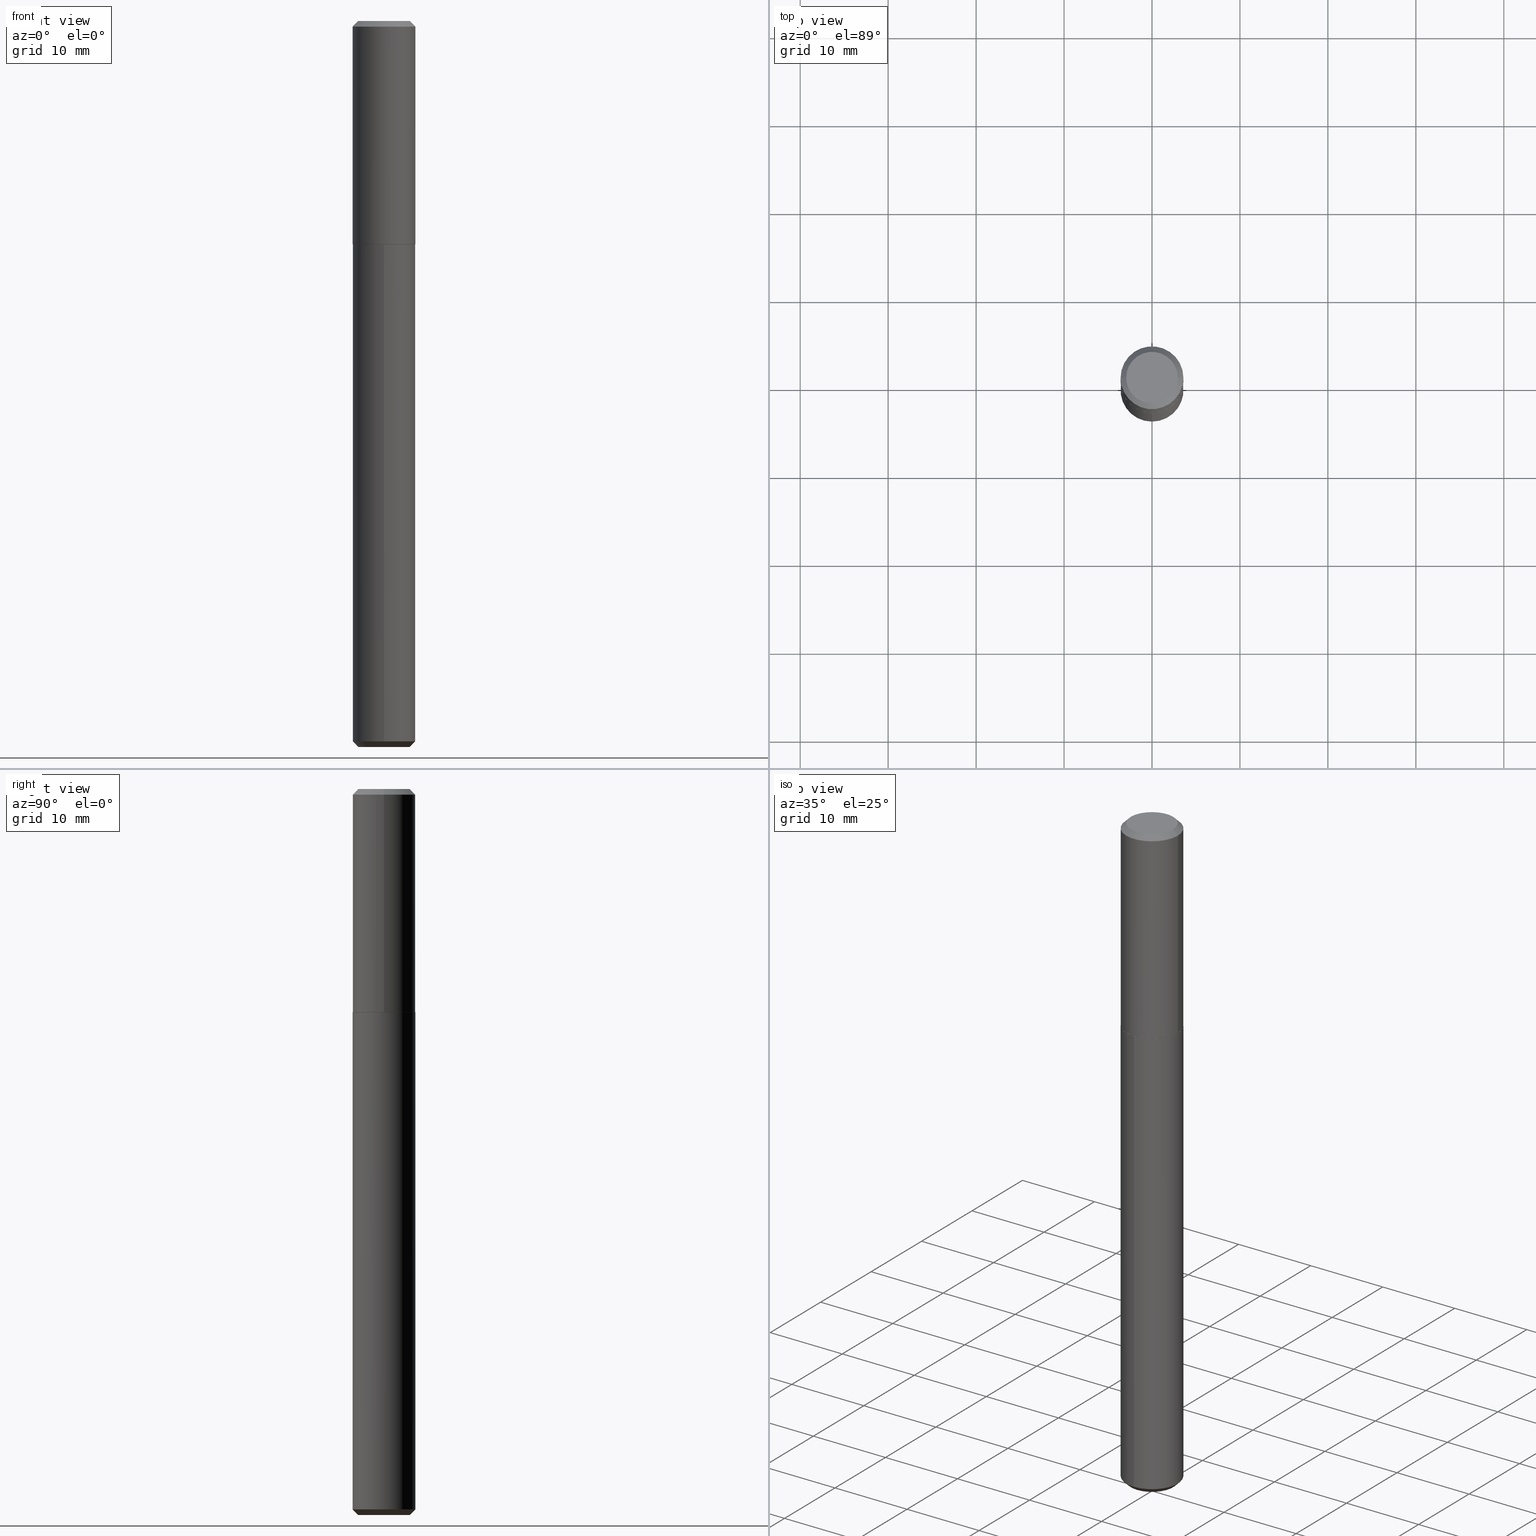
[diagram: canonical four-view strip — front | top / right | iso, engineering-drawing reading convention]
A machine part, canonical four-view strip (front | top / right | iso — engineering-drawing reading convention). The complete STEP part file that produces these views, byte-faithful:
ISO-10303-21;
HEADER;
FILE_DESCRIPTION (( 'STEP AP203' ),
    '1' );
FILE_NAME ('70018.STEP',
    '2024-04-19T13:35:36',
    ( '' ),
    ( '' ),
    'SwSTEP 2.0',
    'SolidWorks 2023',
    '' );
FILE_SCHEMA (( 'CONFIG_CONTROL_DESIGN' ));
ENDSEC;

DATA;
#1 = VECTOR ( 'NONE', #295, 39.37007874015748143 ) ;
#2 = AXIS2_PLACEMENT_3D ( 'NONE', #15, #215, #330 ) ;
#3 = CARTESIAN_POINT ( 'NONE',  ( 0.000000000000000000, 0.000000000000000000, 0.000000000000000000 ) ) ;
#4 = ORIENTED_EDGE ( 'NONE', *, *, #309, .F. ) ;
#5 = LINE ( 'NONE', #263, #182 ) ;
#6 = EDGE_LOOP ( 'NONE', ( #328, #40, #168, #142 ) ) ;
#7 = PERSON ( 'UNSPECIFIED', 'UNSPECIFIED', 'UNSPECIFIED', ('UNSPECIFIED'), ('UNSPECIFIED'), ('UNSPECIFIED') ) ;
#8 = DIRECTION ( 'NONE',  ( -6.982962677686265133E-15, -1.000000000000000000, 3.885985766236505386E-15 ) ) ;
#9 = EDGE_LOOP ( 'NONE', ( #62, #264 ) ) ;
#10 = VECTOR ( 'NONE', #325, 39.37007874015748143 ) ;
#11 = DIRECTION ( 'NONE',  ( 1.000000000000000000, -6.982962677686265922E-15, 4.876176775795935793E-29 ) ) ;
#12 = ORIENTED_EDGE ( 'NONE', *, *, #320, .F. ) ;
#13 = CIRCLE ( 'NONE', #2, 0.1401000000000000856 ) ;
#14 = CIRCLE ( 'NONE', #87, 0.1406000000000001138 ) ;
#15 = CARTESIAN_POINT ( 'NONE',  ( 2.445468806185136597E-29, -3.491481338843145583E-15, -1.000000000000000000 ) ) ;
#16 = CARTESIAN_POINT ( 'NONE',  ( 2.444246071782043795E-29, -3.489735598173723685E-15, -0.9994999999999999440 ) ) ;
#17 = ADVANCED_FACE ( 'NONE', ( #133 ), #381, .T. ) ;
#18 = LINE ( 'NONE', #368, #60 ) ;
#19 = DIRECTION ( 'NONE',  ( -1.000000000000000000, 6.982962677686266711E-15, 0.000000000000000000 ) ) ;
#20 = FACE_OUTER_BOUND ( 'NONE', #346, .T. ) ;
#21 = AXIS2_PLACEMENT_3D ( 'NONE', #187, #406, #315 ) ;
#22 = LINE ( 'NONE', #220, #351 ) ;
#23 = DIRECTION ( 'NONE',  ( 0.7071067811865452413, -7.319954787623248157E-15, -0.7071067811865497932 ) ) ;
#24 = VERTEX_POINT ( 'NONE', #291 ) ;
#25 = PERSON_AND_ORGANIZATION ( #7, #306 ) ;
#26 = CIRCLE ( 'NONE', #111, 0.1406000000000000028 ) ;
#27 = PERSON_AND_ORGANIZATION ( #7, #306 ) ;
#28 = CC_DESIGN_PERSON_AND_ORGANIZATION_ASSIGNMENT ( #260, #101, ( #69 ) ) ;
#29 = COORDINATED_UNIVERSAL_TIME_OFFSET ( 5, 0, .BEHIND. ) ;
#30 = ORIENTED_EDGE ( 'NONE', *, *, #185, .T. ) ;
#31 = PERSON_AND_ORGANIZATION_ROLE ( 'creator' ) ;
#32 = ORIENTED_EDGE ( 'NONE', *, *, #80, .F. ) ;
#33 = AXIS2_PLACEMENT_3D ( 'NONE', #140, #358, #269 ) ;
#34 = PERSON_AND_ORGANIZATION ( #7, #306 ) ;
#35 = CONICAL_SURFACE ( 'NONE', #338, 0.1406000000000001138, 0.7853981633974311816 ) ;
#36 = DIRECTION ( 'NONE',  ( 5.024295867788075011E-15, 0.7071067811865517916, 0.7071067811865430208 ) ) ;
#37 = CARTESIAN_POINT ( 'NONE',  ( 0.1406000000000000583, -9.818045524826896975E-16, 6.855904546769089077E-30 ) ) ;
#38 = ORIENTED_EDGE ( 'NONE', *, *, #273, .F. ) ;
#39 = CARTESIAN_POINT ( 'NONE',  ( -9.818045524826644539E-16, -0.1406000000000034722, -0.9999999999999994449 ) ) ;
#40 = ORIENTED_EDGE ( 'NONE', *, *, #242, .F. ) ;
#41 = AXIS2_PLACEMENT_3D ( 'NONE', #398, #53, #49 ) ;
#42 = VERTEX_POINT ( 'NONE', #356 ) ;
#43 = VERTEX_POINT ( 'NONE', #297 ) ;
#44 = FACE_OUTER_BOUND ( 'NONE', #316, .T. ) ;
#45 = DIRECTION ( 'NONE',  ( -0.7071067811865452413, 2.468850131082233000E-15, -0.7071067811865497932 ) ) ;
#46 = EDGE_CURVE ( 'NONE', #209, #321, #107, .T. ) ;
#47 = FACE_OUTER_BOUND ( 'NONE', #65, .T. ) ;
#48 = VECTOR ( 'NONE', #23, 39.37007874015748143 ) ;
#49 = DIRECTION ( 'NONE',  ( -6.982962677686265133E-15, -1.000000000000000000, 4.726380611875888342E-15 ) ) ;
#50 = FACE_OUTER_BOUND ( 'NONE', #192, .T. ) ;
#51 = CARTESIAN_POINT ( 'NONE',  ( 2.444246071782043795E-29, -3.489735598173723685E-15, -0.9994999999999999440 ) ) ;
#52 = DIRECTION ( 'NONE',  ( -6.982962677686265133E-15, -1.000000000000000000, 3.885985766236505386E-15 ) ) ;
#53 = DIRECTION ( 'NONE',  ( -2.445778796490868869E-29, 3.491037415081784460E-15, 1.000000000000000000 ) ) ;
#54 = DIRECTION ( 'NONE',  ( 1.000000000000000000, -6.982962677686267499E-15, 0.000000000000000000 ) ) ;
#55 = PRODUCT_DEFINITION_FORMATION_WITH_SPECIFIED_SOURCE ( 'ANY', '', #248, .NOT_KNOWN. ) ;
#56 = EDGE_CURVE ( 'NONE', #74, #314, #230, .T. ) ;
#57 = EDGE_LOOP ( 'NONE', ( #376, #79 ) ) ;
#58 = COORDINATED_UNIVERSAL_TIME_OFFSET ( 5, 0, .BEHIND. ) ;
#59 = EDGE_CURVE ( 'NONE', #139, #24, #73, .T. ) ;
#60 = VECTOR ( 'NONE', #336, 39.37007874015748143 ) ;
#61 = CALENDAR_DATE ( 2024, 19, 4 ) ;
#62 = ORIENTED_EDGE ( 'NONE', *, *, #322, .T. ) ;
#63 = UNCERTAINTY_MEASURE_WITH_UNIT (LENGTH_MEASURE( 1.000000000000000082E-05 ), #186, 'distance_accuracy_value', 'NONE');
#64 = DATE_TIME_ROLE ( 'classification_date' ) ;
#65 = EDGE_LOOP ( 'NONE', ( #171, #199 ) ) ;
#66 = APPROVAL_STATUS ( 'not_yet_approved' ) ;
#67 = ORIENTED_EDGE ( 'NONE', *, *, #225, .T. ) ;
#68 = CLOSED_SHELL ( 'NONE', ( #256, #154, #240, #102, #134, #148 ) ) ;
#69 = SECURITY_CLASSIFICATION ( '', '', #262 ) ;
#70 = DIRECTION ( 'NONE',  ( 1.000000000000000000, -6.982962677686268288E-15, 4.876176775795936353E-29 ) ) ;
#71 = CYLINDRICAL_SURFACE ( 'NONE', #110, 0.1406000000000000028 ) ;
#72 = ORIENTED_EDGE ( 'NONE', *, *, #165, .T. ) ;
#73 = LINE ( 'NONE', #37, #277 ) ;
#74 = VERTEX_POINT ( 'NONE', #384 ) ;
#75 = AXIS2_PLACEMENT_3D ( 'NONE', #144, #181, #247 ) ;
#76 = DIRECTION ( 'NONE',  ( -2.445468806185136597E-29, 3.491481338843145583E-15, 1.000000000000000000 ) ) ;
#77 = VERTEX_POINT ( 'NONE', #138 ) ;
#78 = FACE_OUTER_BOUND ( 'NONE', #9, .T. ) ;
#79 = ORIENTED_EDGE ( 'NONE', *, *, #126, .T. ) ;
#80 = EDGE_CURVE ( 'NONE', #314, #131, #238, .T. ) ;
#81 = CARTESIAN_POINT ( 'NONE',  ( -1.167985862904635082E-47, 1.667574263899816494E-33, 4.776122516674668280E-19 ) ) ;
#82 = DIRECTION ( 'NONE',  ( -2.445468806185136597E-29, 3.491481338843145583E-15, 1.000000000000000000 ) ) ;
#83 = ADVANCED_BREP_SHAPE_REPRESENTATION ( '70018', ( #145, #415, #21 ), #284 ) ;
#84 = DIRECTION ( 'NONE',  ( 1.000000000000000000, -6.982962677686266711E-15, 0.000000000000000000 ) ) ;
#85 = AXIS2_PLACEMENT_3D ( 'NONE', #164, #206, #327 ) ;
#86 = CARTESIAN_POINT ( 'NONE',  ( -0.1406000000000001138, -2.490712511695022015E-15, -0.9994999999999999440 ) ) ;
#87 = AXIS2_PLACEMENT_3D ( 'NONE', #16, #208, #276 ) ;
#88 = CARTESIAN_POINT ( 'NONE',  ( 0.1406000000000000028, -1.051873051957756651E-15, -0.02500000000000016792 ) ) ;
#89 = DIRECTION ( 'NONE',  ( -0.7071067811865353603, 7.493145998870309984E-15, 0.7071067811865595631 ) ) ;
#90 = CARTESIAN_POINT ( 'NONE',  ( -0.1406000000000000028, -7.894882293437000297E-16, -0.02500000000000016792 ) ) ;
#91 = CARTESIAN_POINT ( 'NONE',  ( 7.887326628377320110E-29, -1.125903958740011651E-14, -3.225000000000000089 ) ) ;
#92 = LENGTH_MEASURE_WITH_UNIT ( LENGTH_MEASURE( 0.02539999999999999897 ), #121 );
#93 = LOCAL_TIME ( 9, 35, 36.00000000000000000, #378 ) ;
#94 = EDGE_CURVE ( 'NONE', #207, #388, #5, .T. ) ;
#95 = LOCAL_TIME ( 9, 35, 36.00000000000000000, #29 ) ;
#96 = EDGE_CURVE ( 'NONE', #314, #388, #236, .T. ) ;
#97 =( NAMED_UNIT ( * ) SI_UNIT ( $, .STERADIAN. ) SOLID_ANGLE_UNIT ( ) );
#98 = DATE_AND_TIME ( #222, #301 ) ;
#99 = AXIS2_PLACEMENT_3D ( 'NONE', #249, #219, #19 ) ;
#100 = APPROVAL_PERSON_ORGANIZATION ( #349, #294, #343 ) ;
#101 = PERSON_AND_ORGANIZATION_ROLE ( 'classification_officer' ) ;
#102 = ADVANCED_FACE ( 'NONE', ( #198 ), #71, .T. ) ;
#103 = APPROVAL_DATE_TIME ( #129, #214 ) ;
#104 = EDGE_LOOP ( 'NONE', ( #201, #166, #350, #385 ) ) ;
#105 = CARTESIAN_POINT ( 'NONE',  ( 7.887326628377320110E-29, -1.125903958740011651E-14, -3.225000000000000089 ) ) ;
#106 = CC_DESIGN_PERSON_AND_ORGANIZATION_ASSIGNMENT ( #224, #405, ( #55 ) ) ;
#107 = LINE ( 'NONE', #202, #10 ) ;
#108 = VERTEX_POINT ( 'NONE', #323 ) ;
#109 = DIRECTION ( 'NONE',  ( -2.445468806185136597E-29, 3.491481338843145583E-15, 1.000000000000000000 ) ) ;
#110 = AXIS2_PLACEMENT_3D ( 'NONE', #200, #416, #8 ) ;
#111 = AXIS2_PLACEMENT_3D ( 'NONE', #91, #390, #218 ) ;
#112 = CARTESIAN_POINT ( 'NONE',  ( -9.818045524826102197E-16, -0.1406000000000112438, -3.224999999999999645 ) ) ;
#113 = ORIENTED_EDGE ( 'NONE', *, *, #56, .F. ) ;
#114 = DIRECTION ( 'NONE',  ( -6.982962677686265133E-15, -1.000000000000000000, 3.885985766236505386E-15 ) ) ;
#115 = CARTESIAN_POINT ( 'NONE',  ( 6.113672015462882830E-31, -8.728703347107923368E-17, -0.02500000000000016792 ) ) ;
#116 = CARTESIAN_POINT ( 'NONE',  ( 6.113672015462882830E-31, -8.728703347107923368E-17, -0.02500000000000016792 ) ) ;
#117 = EDGE_CURVE ( 'NONE', #321, #24, #337, .T. ) ;
#118 = CARTESIAN_POINT ( 'NONE',  ( 2.444246071782043795E-29, -3.489735598173723685E-15, -0.9994999999999999440 ) ) ;
#119 = DIRECTION ( 'NONE',  ( -1.000000000000000000, 6.982962677686266711E-15, 0.000000000000000000 ) ) ;
#120 = CYLINDRICAL_SURFACE ( 'NONE', #344, 0.1406000000000000028 ) ;
#121 =( LENGTH_UNIT ( ) NAMED_UNIT ( * ) SI_UNIT ( $, .METRE. ) );
#122 = DIRECTION ( 'NONE',  ( 1.000000000000000000, -6.982962677686265922E-15, 4.876128510338472698E-29 ) ) ;
#123 = EDGE_CURVE ( 'NONE', #139, #209, #317, .T. ) ;
#124 = ORIENTED_EDGE ( 'NONE', *, *, #359, .T. ) ;
#125 = CONICAL_SURFACE ( 'NONE', #254, 0.1406000000000000028, 0.7853981633974510546 ) ;
#126 = EDGE_CURVE ( 'NONE', #43, #108, #252, .T. ) ;
#127 = APPROVAL_DATE_TIME ( #283, #136 ) ;
#128 = ORIENTED_EDGE ( 'NONE', *, *, #193, .F. ) ;
#129 = DATE_AND_TIME ( #375, #93 ) ;
#130 = APPROVAL_STATUS ( 'not_yet_approved' ) ;
#131 = VERTEX_POINT ( 'NONE', #39 ) ;
#132 = APPROVAL_PERSON_ORGANIZATION ( #259, #214, #342 ) ;
#133 = FACE_OUTER_BOUND ( 'NONE', #232, .T. ) ;
#134 = ADVANCED_FACE ( 'NONE', ( #78 ), #141, .F. ) ;
#135 = ORIENTED_EDGE ( 'NONE', *, *, #299, .T. ) ;
#136 = APPROVAL ( #130, 'UNSPECIFIED' ) ;
#137 = CIRCLE ( 'NONE', #75, 0.1155999999999999944 ) ;
#138 = CARTESIAN_POINT ( 'NONE',  ( 0.1401000000000000856, -4.469794409986992076E-15, -1.000000000000000000 ) ) ;
#139 = VERTEX_POINT ( 'NONE', #173 ) ;
#140 = CARTESIAN_POINT ( 'NONE',  ( 6.113672015462882830E-31, -8.728703347107923368E-17, -0.02500000000000016792 ) ) ;
#141 = PLANE ( 'NONE',  #85 ) ;
#142 = ORIENTED_EDGE ( 'NONE', *, *, #117, .T. ) ;
#143 = AXIS2_PLACEMENT_3D ( 'NONE', #105, #354, #271 ) ;
#144 = CARTESIAN_POINT ( 'NONE',  ( 7.948471098289592112E-29, -1.134631552277716210E-14, -3.250000000000000000 ) ) ;
#145 = MANIFOLD_SOLID_BREP ( 'Body-Move/Copy2[1]', #68 ) ;
#146 = CARTESIAN_POINT ( 'NONE',  ( 2.445468806185136597E-29, -3.491481338843145583E-15, -1.000000000000000000 ) ) ;
#147 = CARTESIAN_POINT ( 'NONE',  ( 0.1406000000000001138, -4.471540150656413579E-15, -0.9994999999999999440 ) ) ;
#148 = ADVANCED_FACE ( 'NONE', ( #44 ), #289, .F. ) ;
#149 = DIRECTION ( 'NONE',  ( -2.445778796490868869E-29, 3.491037415081784460E-15, 1.000000000000000000 ) ) ;
#150 = CARTESIAN_POINT ( 'NONE',  ( 9.102052445087673621E-16, 0.1155999999999886424, -3.250000000000000444 ) ) ;
#151 = CIRCLE ( 'NONE', #278, 0.1155999999999999944 ) ;
#152 = LINE ( 'NONE', #147, #395 ) ;
#153 = DIRECTION ( 'NONE',  ( -2.445468806185136597E-29, 3.491481338843145583E-15, 1.000000000000000000 ) ) ;
#154 = ADVANCED_FACE ( 'NONE', ( #50 ), #244, .T. ) ;
#155 = DATE_TIME_ROLE ( 'creation_date' ) ;
#156 = AXIS2_PLACEMENT_3D ( 'NONE', #267, #414, #352 ) ;
#157 = APPROVAL_PERSON_ORGANIZATION ( #27, #136, #402 ) ;
#158 = PERSON_AND_ORGANIZATION ( #7, #306 ) ;
#159 = EDGE_LOOP ( 'NONE', ( #326, #318, #67, #38 ) ) ;
#160 = ORIENTED_EDGE ( 'NONE', *, *, #281, .F. ) ;
#161 = CONICAL_SURFACE ( 'NONE', #213, 0.1406000000000000028, 0.7853981633974450594 ) ;
#162 = CC_DESIGN_APPROVAL ( #294, ( #69 ) ) ;
#163 = APPROVAL_STATUS ( 'not_yet_approved' ) ;
#164 = CARTESIAN_POINT ( 'NONE',  ( 3.802253484767616343E-29, -1.548488455724892890E-15, -1.000000000000000222 ) ) ;
#165 = EDGE_CURVE ( 'NONE', #74, #207, #137, .T. ) ;
#166 = ORIENTED_EDGE ( 'NONE', *, *, #46, .T. ) ;
#167 = ORIENTED_EDGE ( 'NONE', *, *, #80, .T. ) ;
#168 = ORIENTED_EDGE ( 'NONE', *, *, #273, .T. ) ;
#169 = AXIS2_PLACEMENT_3D ( 'NONE', #243, #304, #279 ) ;
#170 = DIRECTION ( 'NONE',  ( -4.937700262164560664E-15, -0.7071067811865469066, 0.7071067811865479058 ) ) ;
#171 = ORIENTED_EDGE ( 'NONE', *, *, #359, .F. ) ;
#172 = EDGE_CURVE ( 'NONE', #388, #314, #26, .T. ) ;
#173 = CARTESIAN_POINT ( 'NONE',  ( 0.1406000000000001138, -4.471540150656413579E-15, -0.9994999999999999440 ) ) ;
#174 = CARTESIAN_POINT ( 'NONE',  ( 5.168722565053039184E-29, 4.083730418338879835E-16, -1.000000000000000222 ) ) ;
#175 = CARTESIAN_POINT ( 'NONE',  ( 2.445468806185136597E-29, -3.491481338843145583E-15, -1.000000000000000000 ) ) ;
#176 = CARTESIAN_POINT ( 'NONE',  ( 2.445468806185137438E-29, -3.491481338843146371E-15, -1.000000000000000222 ) ) ;
#177 = FACE_OUTER_BOUND ( 'NONE', #203, .T. ) ;
#178 = FACE_OUTER_BOUND ( 'NONE', #407, .T. ) ;
#179 = CC_DESIGN_PERSON_AND_ORGANIZATION_ASSIGNMENT ( #158, #228, ( #55 ) ) ;
#180 = PLANE ( 'NONE',  #221 ) ;
#181 = DIRECTION ( 'NONE',  ( -2.445778796490868869E-29, 3.491037415081784460E-15, 1.000000000000000000 ) ) ;
#182 = VECTOR ( 'NONE', #36, 39.37007874015748854 ) ;
#183 = DIRECTION ( 'NONE',  ( -2.445778796490868869E-29, 3.491037415081784460E-15, 1.000000000000000000 ) ) ;
#184 = AXIS2_PLACEMENT_3D ( 'NONE', #116, #302, #307 ) ;
#185 = EDGE_CURVE ( 'NONE', #42, #77, #389, .T. ) ;
#186 =( CONVERSION_BASED_UNIT ( 'INCH', #92 ) LENGTH_UNIT ( ) NAMED_UNIT ( #212 ) );
#187 = CARTESIAN_POINT ( 'NONE',  ( 0.000000000000000000, 0.000000000000000000, 0.000000000000000000 ) ) ;
#188 = ORIENTED_EDGE ( 'NONE', *, *, #320, .T. ) ;
#189 = AXIS2_PLACEMENT_3D ( 'NONE', #51, #391, #217 ) ;
#190 =( NAMED_UNIT ( * ) PLANE_ANGLE_UNIT ( ) SI_UNIT ( $, .RADIAN. ) );
#191 = EDGE_LOOP ( 'NONE', ( #357, #282, #167, #160 ) ) ;
#192 = EDGE_LOOP ( 'NONE', ( #72, #229, #234, #113 ) ) ;
#193 = EDGE_CURVE ( 'NONE', #209, #139, #14, .T. ) ;
#194 = ORIENTED_EDGE ( 'NONE', *, *, #309, .T. ) ;
#195 = AXIS2_PLACEMENT_3D ( 'NONE', #211, #183, #52 ) ;
#196 = CC_DESIGN_APPROVAL ( #136, ( #55 ) ) ;
#197 = ADVANCED_FACE ( 'NONE', ( #47 ), #397, .F. ) ;
#198 = FACE_OUTER_BOUND ( 'NONE', #191, .T. ) ;
#199 = ORIENTED_EDGE ( 'NONE', *, *, #185, .F. ) ;
#200 = CARTESIAN_POINT ( 'NONE',  ( 2.445468806185137438E-29, -3.491481338843146371E-15, -1.000000000000000222 ) ) ;
#201 = ORIENTED_EDGE ( 'NONE', *, *, #123, .T. ) ;
#202 = CARTESIAN_POINT ( 'NONE',  ( -0.1406000000000000583, 9.990230864787012753E-16, -6.916022736898400541E-30 ) ) ;
#203 = EDGE_LOOP ( 'NONE', ( #341, #30, #194, #128 ) ) ;
#204 = DESIGN_CONTEXT ( 'detailed design', #408, 'design' ) ;
#205 = AXIS2_PLACEMENT_3D ( 'NONE', #146, #274, #392 ) ;
#206 = DIRECTION ( 'NONE',  ( 2.445778796490868588E-29, -3.491037415081784460E-15, -1.000000000000000000 ) ) ;
#207 = VERTEX_POINT ( 'NONE', #150 ) ;
#208 = DIRECTION ( 'NONE',  ( -2.445468806185136597E-29, 3.491481338843145583E-15, 1.000000000000000000 ) ) ;
#209 = VERTEX_POINT ( 'NONE', #86 ) ;
#210 = ADVANCED_FACE ( 'NONE', ( #272 ), #161, .T. ) ;
#211 = CARTESIAN_POINT ( 'NONE',  ( 7.887326628377320110E-29, -1.125903958740011651E-14, -3.225000000000000089 ) ) ;
#212 = DIMENSIONAL_EXPONENTS ( 1.000000000000000000, 0.000000000000000000, 0.000000000000000000, 0.000000000000000000, 0.000000000000000000, 0.000000000000000000, 0.000000000000000000 ) ;
#213 = AXIS2_PLACEMENT_3D ( 'NONE', #115, #335, #119 ) ;
#214 = APPROVAL ( #163, 'UNSPECIFIED' ) ;
#215 = DIRECTION ( 'NONE',  ( -2.445468806185136597E-29, 3.491481338843145583E-15, 1.000000000000000000 ) ) ;
#216 = DIRECTION ( 'NONE',  ( -6.982962677686265133E-15, -1.000000000000000000, 3.885985766236505386E-15 ) ) ;
#217 = DIRECTION ( 'NONE',  ( 1.000000000000000000, -6.982962677686266711E-15, 0.000000000000000000 ) ) ;
#218 = DIRECTION ( 'NONE',  ( -6.982962677686265133E-15, -1.000000000000000000, 3.885985766236505386E-15 ) ) ;
#219 = DIRECTION ( 'NONE',  ( 2.445468806185136597E-29, -3.491481338843145583E-15, -1.000000000000000000 ) ) ;
#220 = CARTESIAN_POINT ( 'NONE',  ( -0.1406000000000001138, -2.490712511695022015E-15, -0.9994999999999999440 ) ) ;
#221 = AXIS2_PLACEMENT_3D ( 'NONE', #81, #275, #367 ) ;
#222 = CALENDAR_DATE ( 2024, 19, 4 ) ;
#223 = PERSON_AND_ORGANIZATION_ROLE ( 'design_owner' ) ;
#224 = PERSON_AND_ORGANIZATION ( #7, #306 ) ;
#225 = EDGE_CURVE ( 'NONE', #24, #321, #313, .T. ) ;
#226 = CONICAL_SURFACE ( 'NONE', #189, 0.1406000000000001138, 0.7853981633974311816 ) ;
#227 = SHAPE_DEFINITION_REPRESENTATION ( #370, #83 ) ;
#228 = PERSON_AND_ORGANIZATION_ROLE ( 'creator' ) ;
#229 = ORIENTED_EDGE ( 'NONE', *, *, #94, .T. ) ;
#230 = LINE ( 'NONE', #112, #265 ) ;
#231 = VECTOR ( 'NONE', #45, 39.37007874015748143 ) ;
#232 = EDGE_LOOP ( 'NONE', ( #355, #292, #403, #386 ) ) ;
#233 = DIRECTION ( 'NONE',  ( -2.445468806185136877E-29, 3.491481338843145188E-15, 1.000000000000000000 ) ) ;
#234 = ORIENTED_EDGE ( 'NONE', *, *, #96, .F. ) ;
#235 = DIRECTION ( 'NONE',  ( 1.000000000000000000, -6.982962677686266711E-15, 0.000000000000000000 ) ) ;
#236 = CIRCLE ( 'NONE', #143, 0.1406000000000000028 ) ;
#237 = CC_DESIGN_APPROVAL ( #214, ( #353 ) ) ;
#238 = LINE ( 'NONE', #360, #1 ) ;
#239 = EDGE_LOOP ( 'NONE', ( #124, #324, #400, #4 ) ) ;
#240 = ADVANCED_FACE ( 'NONE', ( #20 ), #125, .T. ) ;
#241 = CARTESIAN_POINT ( 'NONE',  ( 7.887326628377320110E-29, -1.125903958740011651E-14, -3.225000000000000089 ) ) ;
#242 = EDGE_CURVE ( 'NONE', #108, #43, #151, .T. ) ;
#243 = CARTESIAN_POINT ( 'NONE',  ( 0.000000000000000000, 0.000000000000000000, 0.000000000000000000 ) ) ;
#244 = CONICAL_SURFACE ( 'NONE', #195, 0.1406000000000000028, 0.7853981633974510546 ) ;
#245 = CIRCLE ( 'NONE', #401, 0.1406000000000000028 ) ;
#246 = LINE ( 'NONE', #88, #48 ) ;
#247 = DIRECTION ( 'NONE',  ( -6.982962677686265133E-15, -1.000000000000000000, 4.726380611875888342E-15 ) ) ;
#248 = PRODUCT ( '70018', '70018', '', ( #340 ) ) ;
#249 = CARTESIAN_POINT ( 'NONE',  ( 6.113672015462882830E-31, -8.728703347107923368E-17, -0.02500000000000016792 ) ) ;
#250 = DIRECTION ( 'NONE',  ( -6.982962677686265133E-15, -1.000000000000000000, 3.885985766236505386E-15 ) ) ;
#251 = DIRECTION ( 'NONE',  ( -2.445468806185136597E-29, 3.491481338843145583E-15, 1.000000000000000000 ) ) ;
#252 = CIRCLE ( 'NONE', #156, 0.1155999999999999944 ) ;
#253 = COORDINATED_UNIVERSAL_TIME_OFFSET ( 5, 0, .BEHIND. ) ;
#254 = AXIS2_PLACEMENT_3D ( 'NONE', #241, #369, #216 ) ;
#255 = ORIENTED_EDGE ( 'NONE', *, *, #56, .T. ) ;
#256 = ADVANCED_FACE ( 'NONE', ( #178 ), #120, .T. ) ;
#257 = COORDINATED_UNIVERSAL_TIME_OFFSET ( 5, 0, .BEHIND. ) ;
#258 = CC_DESIGN_PERSON_AND_ORGANIZATION_ASSIGNMENT ( #34, #223, ( #248 ) ) ;
#259 = PERSON_AND_ORGANIZATION ( #7, #306 ) ;
#260 = PERSON_AND_ORGANIZATION ( #7, #306 ) ;
#261 = CC_DESIGN_SECURITY_CLASSIFICATION ( #69, ( #55 ) ) ;
#262 = SECURITY_CLASSIFICATION_LEVEL ( 'unclassified' ) ;
#263 = CARTESIAN_POINT ( 'NONE',  ( 9.990230864787795698E-16, 0.1405999999999887340, -3.225000000000000533 ) ) ;
#264 = ORIENTED_EDGE ( 'NONE', *, *, #281, .T. ) ;
#265 = VECTOR ( 'NONE', #170, 39.37007874015748854 ) ;
#266 = CIRCLE ( 'NONE', #205, 0.1406000000000000028 ) ;
#267 = CARTESIAN_POINT ( 'NONE',  ( -2.335971725809270164E-47, 3.335148527799632988E-33, 9.552245033349336561E-19 ) ) ;
#268 = ORIENTED_EDGE ( 'NONE', *, *, #96, .T. ) ;
#269 = DIRECTION ( 'NONE',  ( 1.000000000000000000, -6.982962677686266711E-15, 0.000000000000000000 ) ) ;
#270 = ORIENTED_EDGE ( 'NONE', *, *, #94, .F. ) ;
#271 = DIRECTION ( 'NONE',  ( -6.982962677686265133E-15, -1.000000000000000000, 3.885985766236505386E-15 ) ) ;
#272 = FACE_OUTER_BOUND ( 'NONE', #159, .T. ) ;
#273 = EDGE_CURVE ( 'NONE', #108, #321, #366, .T. ) ;
#274 = DIRECTION ( 'NONE',  ( -2.445778796490868869E-29, 3.491037415081784460E-15, 1.000000000000000000 ) ) ;
#275 = DIRECTION ( 'NONE',  ( 2.438088387897960049E-29, -3.491481338843145188E-15, -1.000000000000000000 ) ) ;
#276 = DIRECTION ( 'NONE',  ( 1.000000000000000000, -6.982962677686266711E-15, 0.000000000000000000 ) ) ;
#277 = VECTOR ( 'NONE', #233, 39.37007874015748143 ) ;
#278 = AXIS2_PLACEMENT_3D ( 'NONE', #362, #82, #122 ) ;
#279 = DIRECTION ( 'NONE',  ( 1.000000000000000000, -6.982962677686268288E-15, 4.876176775795936353E-29 ) ) ;
#280 = DIRECTION ( 'NONE',  ( 0.7071067811865353603, -2.468850131082130054E-15, 0.7071067811865595631 ) ) ;
#281 = EDGE_CURVE ( 'NONE', #380, #131, #266, .T. ) ;
#282 = ORIENTED_EDGE ( 'NONE', *, *, #172, .T. ) ;
#283 = DATE_AND_TIME ( #377, #383 ) ;
#284 =( GEOMETRIC_REPRESENTATION_CONTEXT ( 3 ) GLOBAL_UNCERTAINTY_ASSIGNED_CONTEXT ( ( #63 ) ) GLOBAL_UNIT_ASSIGNED_CONTEXT ( ( #186, #190, #97 ) ) REPRESENTATION_CONTEXT ( 'NONE', 'WORKASPACE' ) );
#285 = EDGE_CURVE ( 'NONE', #42, #209, #22, .T. ) ;
#286 = APPLICATION_PROTOCOL_DEFINITION ( 'international standard', 'config_control_design', 1994, #348 ) ;
#287 = DATE_AND_TIME ( #61, #95 ) ;
#288 = ADVANCED_FACE ( 'NONE', ( #300 ), #333, .T. ) ;
#289 = PLANE ( 'NONE',  #311 ) ;
#290 = CARTESIAN_POINT ( 'NONE',  ( 7.947773620101693940E-29, -1.134731435124022443E-14, -3.250000000000000000 ) ) ;
#291 = CARTESIAN_POINT ( 'NONE',  ( 0.1406000000000000028, -1.069091585953768426E-15, -0.02500000000000016792 ) ) ;
#292 = ORIENTED_EDGE ( 'NONE', *, *, #193, .T. ) ;
#293 = CONICAL_SURFACE ( 'NONE', #99, 0.1406000000000000028, 0.7853981633974450594 ) ;
#294 = APPROVAL ( #66, 'UNSPECIFIED' ) ;
#295 = DIRECTION ( 'NONE',  ( -2.445778796490868588E-29, 3.491037415081784460E-15, 1.000000000000000000 ) ) ;
#296 = ORIENTED_EDGE ( 'NONE', *, *, #172, .F. ) ;
#297 = CARTESIAN_POINT ( 'NONE',  ( 0.1155999999999999944, -9.224733102500728265E-16, 9.552245033409814613E-19 ) ) ;
#298 = ORIENTED_EDGE ( 'NONE', *, *, #322, .F. ) ;
#299 = EDGE_CURVE ( 'NONE', #388, #380, #18, .T. ) ;
#300 = FACE_OUTER_BOUND ( 'NONE', #104, .T. ) ;
#301 = LOCAL_TIME ( 9, 35, 36.00000000000000000, #257 ) ;
#302 = DIRECTION ( 'NONE',  ( -2.445468806185136597E-29, 3.491481338843145583E-15, 1.000000000000000000 ) ) ;
#303 = CARTESIAN_POINT ( 'NONE',  ( 9.990230864787799642E-16, 0.1405999999999887895, -3.225000000000000533 ) ) ;
#304 = DIRECTION ( 'NONE',  ( -2.445468806185136597E-29, 3.491481338843145583E-15, 1.000000000000000000 ) ) ;
#305 = CARTESIAN_POINT ( 'NONE',  ( 2.445468806185136597E-29, -3.491481338843145583E-15, -1.000000000000000000 ) ) ;
#306 = ORGANIZATION ( 'UNSPECIFIED', 'UNSPECIFIED', '' ) ;
#307 = DIRECTION ( 'NONE',  ( 1.000000000000000000, -6.982962677686266711E-15, 0.000000000000000000 ) ) ;
#308 = FACE_OUTER_BOUND ( 'NONE', #239, .T. ) ;
#309 = EDGE_CURVE ( 'NONE', #77, #139, #152, .T. ) ;
#310 = CC_DESIGN_DATE_AND_TIME_ASSIGNMENT ( #312, #155, ( #353 ) ) ;
#311 = AXIS2_PLACEMENT_3D ( 'NONE', #290, #399, #364 ) ;
#312 = DATE_AND_TIME ( #410, #374 ) ;
#313 = CIRCLE ( 'NONE', #184, 0.1406000000000000028 ) ;
#314 = VERTEX_POINT ( 'NONE', #396 ) ;
#315 = DIRECTION ( 'NONE',  ( 1.000000000000000000, 0.000000000000000000, 0.000000000000000000 ) ) ;
#316 = EDGE_LOOP ( 'NONE', ( #412, #12 ) ) ;
#317 = CIRCLE ( 'NONE', #373, 0.1406000000000001138 ) ;
#318 = ORIENTED_EDGE ( 'NONE', *, *, #393, .T. ) ;
#319 = AXIS2_PLACEMENT_3D ( 'NONE', #305, #251, #54 ) ;
#320 = EDGE_CURVE ( 'NONE', #207, #74, #332, .T. ) ;
#321 = VERTEX_POINT ( 'NONE', #90 ) ;
#322 = EDGE_CURVE ( 'NONE', #131, #380, #245, .T. ) ;
#323 = CARTESIAN_POINT ( 'NONE',  ( -0.1155999999999999944, 8.508740022760711120E-16, 9.552245033291358366E-19 ) ) ;
#324 = ORIENTED_EDGE ( 'NONE', *, *, #285, .T. ) ;
#325 = DIRECTION ( 'NONE',  ( -2.445468806185136877E-29, 3.491481338843145188E-15, 1.000000000000000000 ) ) ;
#326 = ORIENTED_EDGE ( 'NONE', *, *, #126, .F. ) ;
#327 = DIRECTION ( 'NONE',  ( 6.982962677686265922E-15, 1.000000000000000000, -3.491037415081784460E-15 ) ) ;
#328 = ORIENTED_EDGE ( 'NONE', *, *, #393, .F. ) ;
#329 = CARTESIAN_POINT ( 'NONE',  ( -0.1406000000000000028, 8.945175190116097859E-16, -0.02500000000000016792 ) ) ;
#330 = DIRECTION ( 'NONE',  ( 1.000000000000000000, -6.982962677686267499E-15, 0.000000000000000000 ) ) ;
#331 = DIRECTION ( 'NONE',  ( -2.445778796490868869E-29, 3.491037415081784460E-15, 1.000000000000000000 ) ) ;
#332 = CIRCLE ( 'NONE', #41, 0.1155999999999999944 ) ;
#333 = CYLINDRICAL_SURFACE ( 'NONE', #169, 0.1406000000000000583 ) ;
#334 = FACE_OUTER_BOUND ( 'NONE', #6, .T. ) ;
#335 = DIRECTION ( 'NONE',  ( 2.445468806185136597E-29, -3.491481338843145583E-15, -1.000000000000000000 ) ) ;
#336 = DIRECTION ( 'NONE',  ( -2.445778796490868588E-29, 3.491037415081784460E-15, 1.000000000000000000 ) ) ;
#337 = CIRCLE ( 'NONE', #33, 0.1406000000000000028 ) ;
#338 = AXIS2_PLACEMENT_3D ( 'NONE', #118, #153, #84 ) ;
#339 = ADVANCED_FACE ( 'NONE', ( #361 ), #180, .F. ) ;
#340 = MECHANICAL_CONTEXT ( 'NONE', #348, 'mechanical' ) ;
#341 = ORIENTED_EDGE ( 'NONE', *, *, #285, .F. ) ;
#342 = APPROVAL_ROLE ( '' ) ;
#343 = APPROVAL_ROLE ( '' ) ;
#344 = AXIS2_PLACEMENT_3D ( 'NONE', #176, #331, #250 ) ;
#345 = ADVANCED_FACE ( 'NONE', ( #177 ), #35, .T. ) ;
#346 = EDGE_LOOP ( 'NONE', ( #270, #188, #255, #296 ) ) ;
#347 = APPROVAL_DATE_TIME ( #287, #294 ) ;
#348 = APPLICATION_CONTEXT ( 'configuration controlled 3d designs of mechanical parts and assemblies' ) ;
#349 = PERSON_AND_ORGANIZATION ( #7, #306 ) ;
#350 = ORIENTED_EDGE ( 'NONE', *, *, #225, .F. ) ;
#351 = VECTOR ( 'NONE', #89, 39.37007874015748854 ) ;
#352 = DIRECTION ( 'NONE',  ( 1.000000000000000000, -6.982962677686265922E-15, 4.876128510338472698E-29 ) ) ;
#353 = PRODUCT_DEFINITION ( 'UNKNOWN', '', #55, #204 ) ;
#354 = DIRECTION ( 'NONE',  ( -2.445778796490868869E-29, 3.491037415081784460E-15, 1.000000000000000000 ) ) ;
#355 = ORIENTED_EDGE ( 'NONE', *, *, #46, .F. ) ;
#356 = CARTESIAN_POINT ( 'NONE',  ( -0.1401000000000000856, -2.493361738869132821E-15, -1.000000000000000000 ) ) ;
#357 = ORIENTED_EDGE ( 'NONE', *, *, #299, .F. ) ;
#358 = DIRECTION ( 'NONE',  ( -2.445468806185136597E-29, 3.491481338843145583E-15, 1.000000000000000000 ) ) ;
#359 = EDGE_CURVE ( 'NONE', #77, #42, #13, .T. ) ;
#360 = CARTESIAN_POINT ( 'NONE',  ( -9.818045524826644539E-16, -0.1406000000000034722, -0.9999999999999996669 ) ) ;
#361 = FACE_OUTER_BOUND ( 'NONE', #57, .T. ) ;
#362 = CARTESIAN_POINT ( 'NONE',  ( -2.335971725809270164E-47, 3.335148527799632988E-33, 9.552245033349336561E-19 ) ) ;
#363 = CARTESIAN_POINT ( 'NONE',  ( 9.990230864787801614E-16, 0.1405999999999965333, -1.000000000000000444 ) ) ;
#364 = DIRECTION ( 'NONE',  ( -6.982962677686265922E-15, -1.000000000000000000, 3.491037415081784460E-15 ) ) ;
#365 = CC_DESIGN_DATE_AND_TIME_ASSIGNMENT ( #98, #64, ( #69 ) ) ;
#366 = LINE ( 'NONE', #329, #231 ) ;
#367 = DIRECTION ( 'NONE',  ( -1.000000000000000000, 6.982962677686265922E-15, -4.876176775795935793E-29 ) ) ;
#368 = CARTESIAN_POINT ( 'NONE',  ( 9.990230864787251384E-16, 0.1405999999999965056, -1.000000000000000888 ) ) ;
#369 = DIRECTION ( 'NONE',  ( -2.445778796490868869E-29, 3.491037415081784460E-15, 1.000000000000000000 ) ) ;
#370 = PRODUCT_DEFINITION_SHAPE ( 'NONE', 'NONE',  #353 ) ;
#371 = ADVANCED_FACE ( 'NONE', ( #308 ), #226, .T. ) ;
#372 = CLOSED_SHELL ( 'NONE', ( #210, #288, #371, #197, #345, #17, #404, #339 ) ) ;
#373 = AXIS2_PLACEMENT_3D ( 'NONE', #387, #109, #235 ) ;
#374 = LOCAL_TIME ( 9, 35, 36.00000000000000000, #58 ) ;
#375 = CALENDAR_DATE ( 2024, 19, 4 ) ;
#376 = ORIENTED_EDGE ( 'NONE', *, *, #242, .T. ) ;
#377 = CALENDAR_DATE ( 2024, 19, 4 ) ;
#378 = COORDINATED_UNIVERSAL_TIME_OFFSET ( 5, 0, .BEHIND. ) ;
#379 = APPLICATION_PROTOCOL_DEFINITION ( 'international standard', 'config_control_design', 1994, #408 ) ;
#380 = VERTEX_POINT ( 'NONE', #363 ) ;
#381 = CYLINDRICAL_SURFACE ( 'NONE', #409, 0.1406000000000000583 ) ;
#382 = CC_DESIGN_PERSON_AND_ORGANIZATION_ASSIGNMENT ( #25, #31, ( #353 ) ) ;
#383 = LOCAL_TIME ( 9, 35, 36.00000000000000000, #253 ) ;
#384 = CARTESIAN_POINT ( 'NONE',  ( -8.072304855404527631E-16, -0.1156000000000113465, -3.249999999999999556 ) ) ;
#385 = ORIENTED_EDGE ( 'NONE', *, *, #59, .F. ) ;
#386 = ORIENTED_EDGE ( 'NONE', *, *, #117, .F. ) ;
#387 = CARTESIAN_POINT ( 'NONE',  ( 2.444246071782043795E-29, -3.489735598173723685E-15, -0.9994999999999999440 ) ) ;
#388 = VERTEX_POINT ( 'NONE', #303 ) ;
#389 = CIRCLE ( 'NONE', #319, 0.1401000000000000856 ) ;
#390 = DIRECTION ( 'NONE',  ( -2.445778796490868869E-29, 3.491037415081784460E-15, 1.000000000000000000 ) ) ;
#391 = DIRECTION ( 'NONE',  ( -2.445468806185136597E-29, 3.491481338843145583E-15, 1.000000000000000000 ) ) ;
#392 = DIRECTION ( 'NONE',  ( -6.982962677686265133E-15, -1.000000000000000000, 3.885985766236505386E-15 ) ) ;
#393 = EDGE_CURVE ( 'NONE', #43, #24, #246, .T. ) ;
#394 = DIRECTION ( 'NONE',  ( -2.438088387897960049E-29, 3.491481338843145188E-15, 1.000000000000000000 ) ) ;
#395 = VECTOR ( 'NONE', #280, 39.37007874015748854 ) ;
#396 = CARTESIAN_POINT ( 'NONE',  ( -9.818045524826098253E-16, -0.1406000000000111883, -3.224999999999999645 ) ) ;
#397 = PLANE ( 'NONE',  #411 ) ;
#398 = CARTESIAN_POINT ( 'NONE',  ( 7.948471098289592112E-29, -1.134631552277716210E-14, -3.250000000000000000 ) ) ;
#399 = DIRECTION ( 'NONE',  ( -2.445778796490868588E-29, 3.491037415081784460E-15, 1.000000000000000000 ) ) ;
#400 = ORIENTED_EDGE ( 'NONE', *, *, #123, .F. ) ;
#401 = AXIS2_PLACEMENT_3D ( 'NONE', #175, #149, #114 ) ;
#402 = APPROVAL_ROLE ( '' ) ;
#403 = ORIENTED_EDGE ( 'NONE', *, *, #59, .T. ) ;
#404 = ADVANCED_FACE ( 'NONE', ( #334 ), #293, .T. ) ;
#405 = PERSON_AND_ORGANIZATION_ROLE ( 'design_supplier' ) ;
#406 = DIRECTION ( 'NONE',  ( 0.000000000000000000, 0.000000000000000000, 1.000000000000000000 ) ) ;
#407 = EDGE_LOOP ( 'NONE', ( #268, #135, #298, #32 ) ) ;
#408 = APPLICATION_CONTEXT ( 'configuration controlled 3d designs of mechanical parts and assemblies' ) ;
#409 = AXIS2_PLACEMENT_3D ( 'NONE', #3, #76, #70 ) ;
#410 = CALENDAR_DATE ( 2024, 19, 4 ) ;
#411 = AXIS2_PLACEMENT_3D ( 'NONE', #174, #394, #11 ) ;
#412 = ORIENTED_EDGE ( 'NONE', *, *, #165, .F. ) ;
#413 = PRODUCT_RELATED_PRODUCT_CATEGORY ( 'detail', '', ( #248 ) ) ;
#414 = DIRECTION ( 'NONE',  ( -2.445468806185136597E-29, 3.491481338843145583E-15, 1.000000000000000000 ) ) ;
#415 = MANIFOLD_SOLID_BREP ( 'Body-Move/Copy2[2]', #372 ) ;
#416 = DIRECTION ( 'NONE',  ( -2.445778796490868869E-29, 3.491037415081784460E-15, 1.000000000000000000 ) ) ;
ENDSEC;
END-ISO-10303-21;
